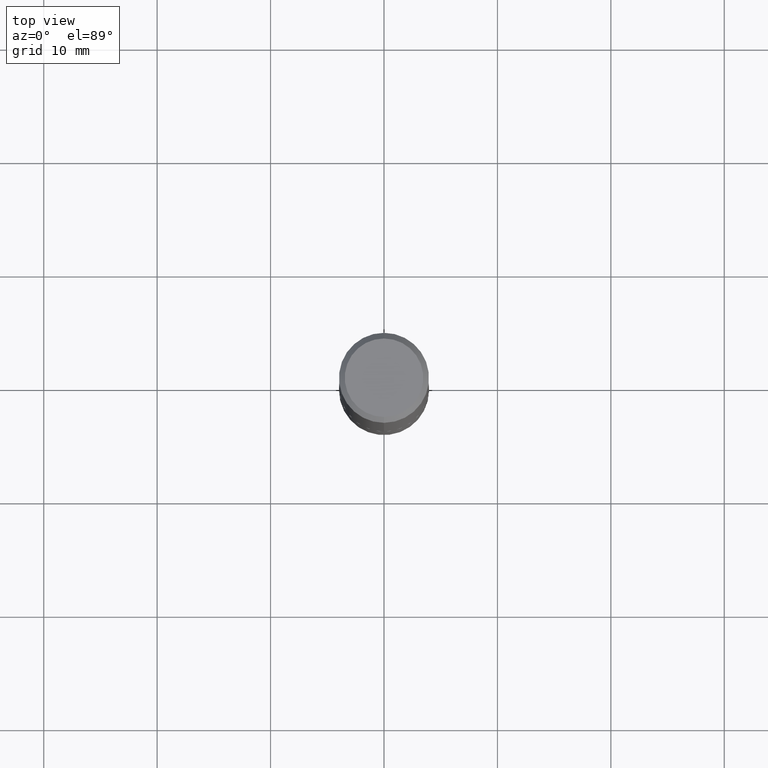
[diagram: clean part render]
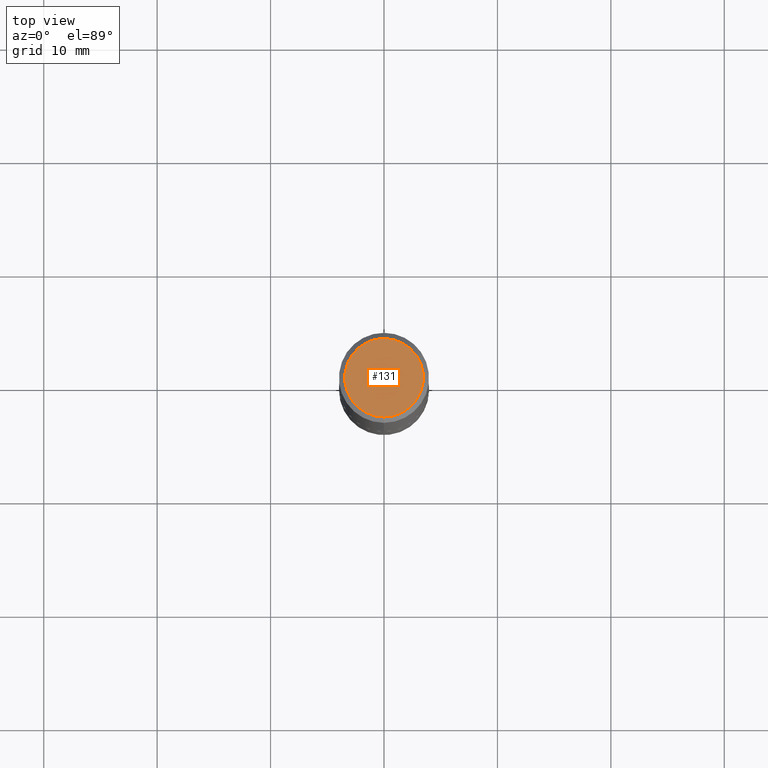
[diagram: same view with one face highlighted and labeled with its STEP entity id]
A machine part, top view. The second image highlights one B-rep face of the part: STEP entity #131.
In plain terms, the highlighted planar face has unit normal (0, -0, -1).
Its self-contained STEP definition (entity closure, byte-faithful):
#26 = CARTESIAN_POINT ( 'NONE',  ( -1.051998109707860162E-45, 1.504285009843582967E-31, 4.305129712188530359E-17 ) ) ;
#33 = DIRECTION ( 'NONE',  ( -6.982962677686266711E-15, -1.000000000000000000, 3.494168841381722958E-15 ) ) ;
#36 = ORIENTED_EDGE ( 'NONE', *, *, #175, .T. ) ;
#43 = VERTEX_POINT ( 'NONE', #141 ) ;
#64 = AXIS2_PLACEMENT_3D ( 'NONE', #303, #357, #296 ) ;
#73 = CARTESIAN_POINT ( 'NONE',  ( -1.003347832174086278E-15, -0.1362500000000000100, 5.191318017601450941E-16 ) ) ;
#128 = DIRECTION ( 'NONE',  ( -2.443592133192829145E-29, 3.494168841381722958E-15, 1.000000000000000000 ) ) ;
#131 = ADVANCED_FACE ( 'NONE', ( #417 ), #387, .F. ) ;
#138 = AXIS2_PLACEMENT_3D ( 'NONE', #26, #386, #166 ) ;
#141 = CARTESIAN_POINT ( 'NONE',  ( 1.021258291611616861E-15, 0.1362500000000000100, -4.330292075163745362E-16 ) ) ;
#146 = EDGE_LOOP ( 'NONE', ( #36, #223 ) ) ;
#166 = DIRECTION ( 'NONE',  ( -6.982962677686266711E-15, -1.000000000000000000, 3.494168841381722958E-15 ) ) ;
#175 = EDGE_CURVE ( 'NONE', #43, #277, #202, .T. ) ;
#202 = CIRCLE ( 'NONE', #334, 0.1362500000000000100 ) ;
#219 = EDGE_CURVE ( 'NONE', #277, #43, #410, .T. ) ;
#223 = ORIENTED_EDGE ( 'NONE', *, *, #219, .T. ) ;
#260 = CARTESIAN_POINT ( 'NONE',  ( -1.051998109707860162E-45, 1.504285009843582967E-31, 4.305129712188530359E-17 ) ) ;
#277 = VERTEX_POINT ( 'NONE', #73 ) ;
#296 = DIRECTION ( 'NONE',  ( 6.982962677686265922E-15, 1.000000000000000000, -3.494168841381722958E-15 ) ) ;
#303 = CARTESIAN_POINT ( 'NONE',  ( 9.514286648347539576E-16, 0.1362500000000000100, -4.545548560773172373E-16 ) ) ;
#334 = AXIS2_PLACEMENT_3D ( 'NONE', #260, #128, #33 ) ;
#357 = DIRECTION ( 'NONE',  ( 2.443592133192828865E-29, -3.494168841381722958E-15, -1.000000000000000000 ) ) ;
#386 = DIRECTION ( 'NONE',  ( -2.443592133192829145E-29, 3.494168841381722958E-15, 1.000000000000000000 ) ) ;
#387 = PLANE ( 'NONE',  #64 ) ;
#410 = CIRCLE ( 'NONE', #138, 0.1362500000000000100 ) ;
#417 = FACE_OUTER_BOUND ( 'NONE', #146, .T. ) ;